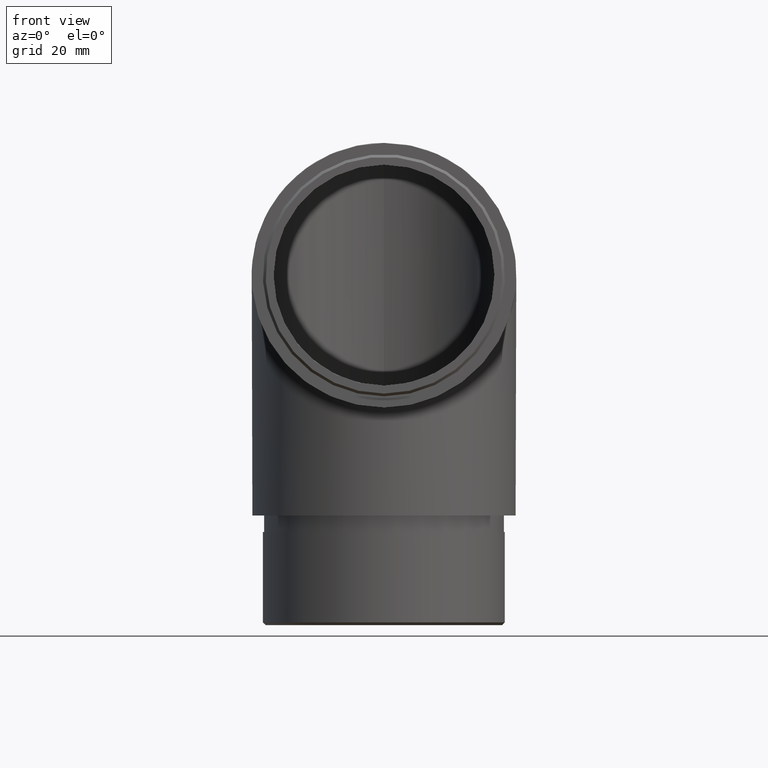
[diagram: clean part render]
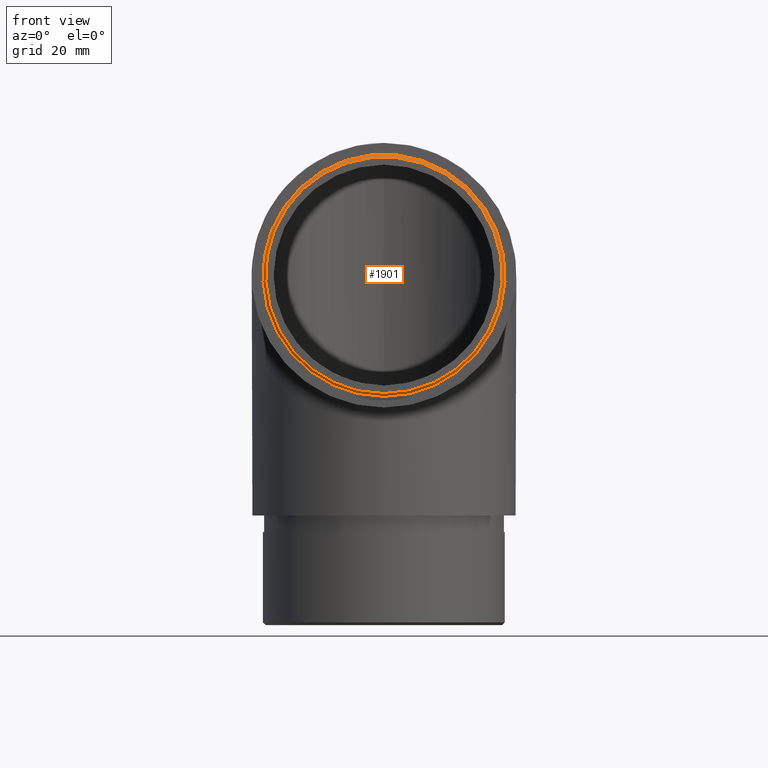
[diagram: same view with one face highlighted and labeled with its STEP entity id]
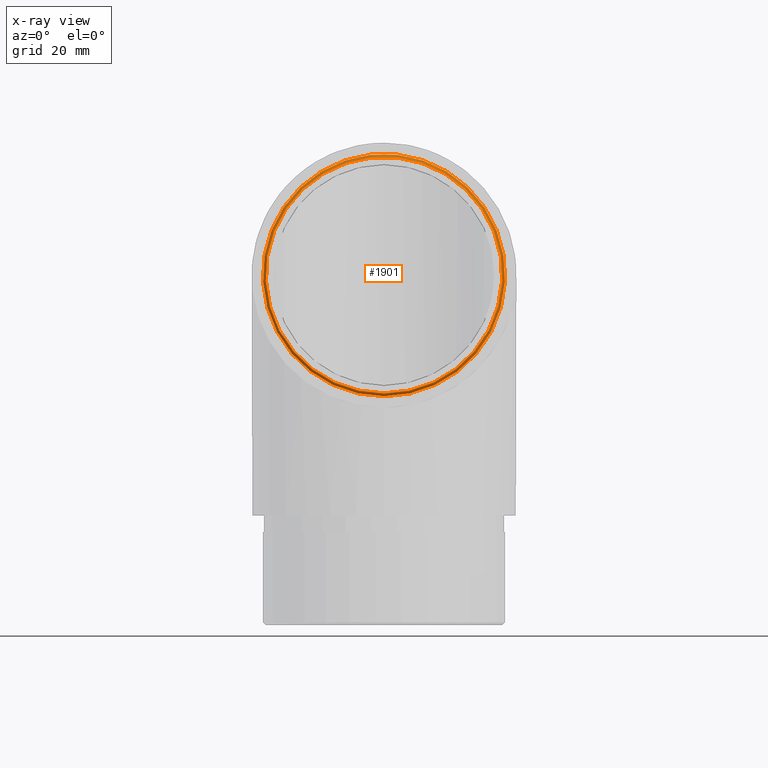
[diagram: x-ray of the same camera — body ghosted, the highlighted face saturated]
A machine part, front view. The second image highlights one B-rep face of the part: STEP entity #1901.
The next image is the same camera in x-ray: the body ghosted, the highlighted face saturated — about 0% of this face is hidden behind the body in this view.
In plain terms, the highlighted conical surface has half-angle 45 deg.
Its self-contained STEP definition (entity closure, byte-faithful):
#222 = VERTEX_POINT ( 'NONE', #5374 ) ;
#1901 = ADVANCED_FACE ( 'NONE', ( #6074, #8614 ), #10657, .T. ) ;
#1962 = CIRCLE ( 'NONE', #8552, 22.10000000000000100 ) ;
#2388 = DIRECTION ( 'NONE',  ( 0.0000000000000000000, -1.000000000000000000, 0.0000000000000000000 ) ) ;
#2621 = VERTEX_POINT ( 'NONE', #5335 ) ;
#2655 = DIRECTION ( 'NONE',  ( 0.0000000000000000000, 1.000000000000000000, 0.0000000000000000000 ) ) ;
#2729 = ORIENTED_EDGE ( 'NONE', *, *, #3839, .F. ) ;
#2981 = AXIS2_PLACEMENT_3D ( 'NONE', #5032, #5143, #6223 ) ;
#3249 = DIRECTION ( 'NONE',  ( 0.0000000000000000000, 0.0000000000000000000, -1.000000000000000000 ) ) ;
#3250 = CIRCLE ( 'NONE', #6812, 21.60000000000002300 ) ;
#3839 = EDGE_CURVE ( 'NONE', #222, #222, #3250, .T. ) ;
#4879 = EDGE_LOOP ( 'NONE', ( #2729 ) ) ;
#5032 = CARTESIAN_POINT ( 'NONE',  ( 0.0000000000000000000, -20.00000000000000000, 0.0000000000000000000 ) ) ;
#5143 = DIRECTION ( 'NONE',  ( 0.0000000000000000000, 1.000000000000000000, 0.0000000000000000000 ) ) ;
#5335 = CARTESIAN_POINT ( 'NONE',  ( 0.0000000000000000000, -19.50000000000001400, -22.10000000000000100 ) ) ;
#5374 = CARTESIAN_POINT ( 'NONE',  ( 0.0000000000000000000, -20.00000000000000000, -21.60000000000002300 ) ) ;
#5884 = EDGE_LOOP ( 'NONE', ( #9093 ) ) ;
#6074 = FACE_OUTER_BOUND ( 'NONE', #5884, .T. ) ;
#6223 = DIRECTION ( 'NONE',  ( 0.0000000000000000000, 0.0000000000000000000, 1.000000000000000000 ) ) ;
#6812 = AXIS2_PLACEMENT_3D ( 'NONE', #7491, #2388, #3249 ) ;
#6896 = DIRECTION ( 'NONE',  ( 0.0000000000000000000, 0.0000000000000000000, -1.000000000000000000 ) ) ;
#7491 = CARTESIAN_POINT ( 'NONE',  ( 0.0000000000000000000, -20.00000000000000000, 0.0000000000000000000 ) ) ;
#8552 = AXIS2_PLACEMENT_3D ( 'NONE', #10075, #2655, #6896 ) ;
#8614 = FACE_BOUND ( 'NONE', #4879, .T. ) ;
#9093 = ORIENTED_EDGE ( 'NONE', *, *, #10506, .F. ) ;
#10075 = CARTESIAN_POINT ( 'NONE',  ( 0.0000000000000000000, -19.50000000000001400, 0.0000000000000000000 ) ) ;
#10506 = EDGE_CURVE ( 'NONE', #2621, #2621, #1962, .T. ) ;
#10657 = CONICAL_SURFACE ( 'NONE', #2981, 21.60000000000002300, 0.7853981633974415100 ) ;